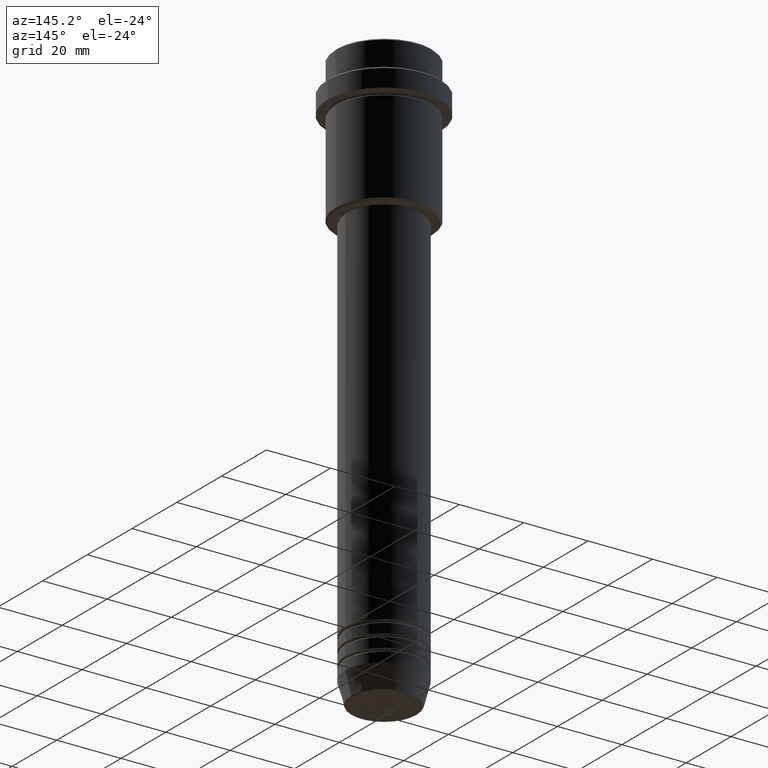
[diagram: clean part render]
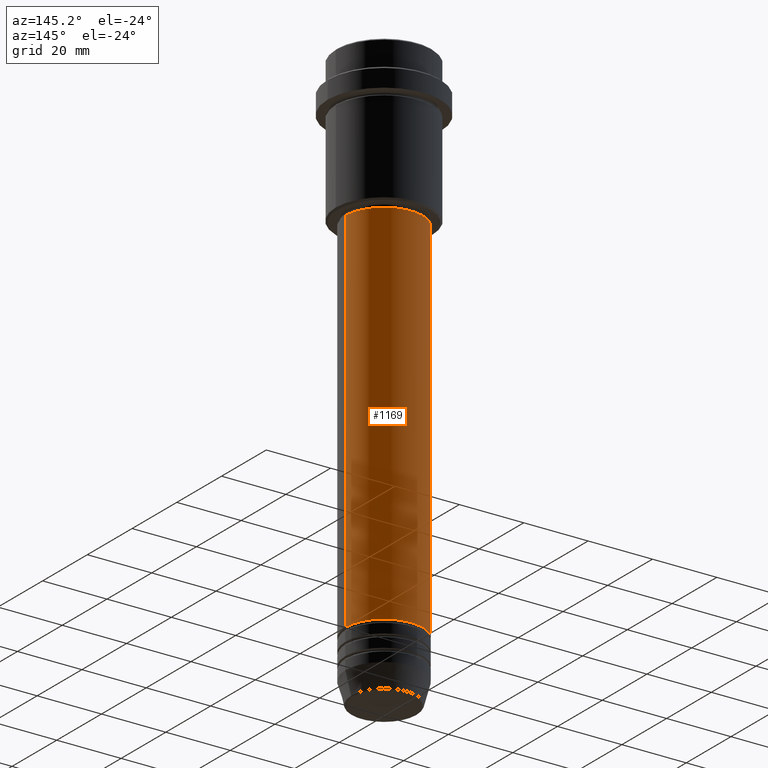
[diagram: same view with one face highlighted and labeled with its STEP entity id]
A machine part, auxiliary view. The second image highlights one B-rep face of the part: STEP entity #1169.
In plain terms, the highlighted cylindrical surface (partial cylindrical patch) has radius 12 mm, axis along (-0, -0, 1).
Its self-contained STEP definition (entity closure, byte-faithful):
#32 = ORIENTED_EDGE ( 'NONE', *, *, #1180, .F. ) ;
#33 = ORIENTED_EDGE ( 'NONE', *, *, #829, .T. ) ;
#78 = CARTESIAN_POINT ( 'NONE',  ( -12.00000000000000000, 1.469576158976823947E-15, -160.9999999999999147 ) ) ;
#108 = LINE ( 'NONE', #546, #644 ) ;
#129 = ORIENTED_EDGE ( 'NONE', *, *, #992, .F. ) ;
#272 = DIRECTION ( 'NONE',  ( 1.000000000000000000, 0.000000000000000000, 0.000000000000000000 ) ) ;
#363 = VERTEX_POINT ( 'NONE', #1218 ) ;
#385 = AXIS2_PLACEMENT_3D ( 'NONE', #723, #412, #1243 ) ;
#386 = AXIS2_PLACEMENT_3D ( 'NONE', #940, #389, #272 ) ;
#389 = DIRECTION ( 'NONE',  ( -0.000000000000000000, -0.000000000000000000, 1.000000000000000000 ) ) ;
#412 = DIRECTION ( 'NONE',  ( -0.000000000000000000, -0.000000000000000000, 1.000000000000000000 ) ) ;
#546 = CARTESIAN_POINT ( 'NONE',  ( 12.00000000000000000, 0.000000000000000000, 0.000000000000000000 ) ) ;
#552 = DIRECTION ( 'NONE',  ( -0.000000000000000000, -0.000000000000000000, 1.000000000000000000 ) ) ;
#644 = VECTOR ( 'NONE', #651, 1000.000000000000000 ) ;
#651 = DIRECTION ( 'NONE',  ( -0.000000000000000000, -0.000000000000000000, 1.000000000000000000 ) ) ;
#723 = CARTESIAN_POINT ( 'NONE',  ( 0.000000000000000000, 0.000000000000000000, -160.9999999999999147 ) ) ;
#746 = VERTEX_POINT ( 'NONE', #78 ) ;
#794 = ORIENTED_EDGE ( 'NONE', *, *, #1084, .T. ) ;
#809 = CIRCLE ( 'NONE', #386, 11.99999999999999822 ) ;
#819 = CARTESIAN_POINT ( 'NONE',  ( 0.000000000000000000, 0.000000000000000000, 0.000000000000000000 ) ) ;
#829 = EDGE_CURVE ( 'NONE', #1079, #746, #1144, .T. ) ;
#838 = CYLINDRICAL_SURFACE ( 'NONE', #1185, 12.00000000000000000 ) ;
#860 = CARTESIAN_POINT ( 'NONE',  ( 11.99999999999999822, 0.000000000000000000, -46.00000000000000000 ) ) ;
#909 = CARTESIAN_POINT ( 'NONE',  ( 12.00000000000000000, 0.000000000000000000, -160.9999999999999147 ) ) ;
#923 = FACE_OUTER_BOUND ( 'NONE', #1013, .T. ) ;
#928 = VECTOR ( 'NONE', #552, 1000.000000000000000 ) ;
#940 = CARTESIAN_POINT ( 'NONE',  ( 0.000000000000000000, 0.000000000000000000, -46.00000000000000000 ) ) ;
#949 = VERTEX_POINT ( 'NONE', #860 ) ;
#992 = EDGE_CURVE ( 'NONE', #1079, #949, #108, .T. ) ;
#1013 = EDGE_LOOP ( 'NONE', ( #33, #794, #32, #129 ) ) ;
#1054 = DIRECTION ( 'NONE',  ( 1.000000000000000000, 0.000000000000000000, 0.000000000000000000 ) ) ;
#1079 = VERTEX_POINT ( 'NONE', #909 ) ;
#1084 = EDGE_CURVE ( 'NONE', #746, #363, #1125, .T. ) ;
#1116 = CARTESIAN_POINT ( 'NONE',  ( -12.00000000000000000, 1.469576158976823947E-15, 0.000000000000000000 ) ) ;
#1125 = LINE ( 'NONE', #1116, #928 ) ;
#1144 = CIRCLE ( 'NONE', #385, 12.00000000000000000 ) ;
#1145 = DIRECTION ( 'NONE',  ( -0.000000000000000000, -0.000000000000000000, 1.000000000000000000 ) ) ;
#1169 = ADVANCED_FACE ( 'NONE', ( #923 ), #838, .T. ) ;
#1180 = EDGE_CURVE ( 'NONE', #949, #363, #809, .T. ) ;
#1185 = AXIS2_PLACEMENT_3D ( 'NONE', #819, #1145, #1054 ) ;
#1218 = CARTESIAN_POINT ( 'NONE',  ( -11.99999999999999822, 1.469576158976823750E-15, -46.00000000000000000 ) ) ;
#1243 = DIRECTION ( 'NONE',  ( 1.000000000000000000, 0.000000000000000000, 0.000000000000000000 ) ) ;